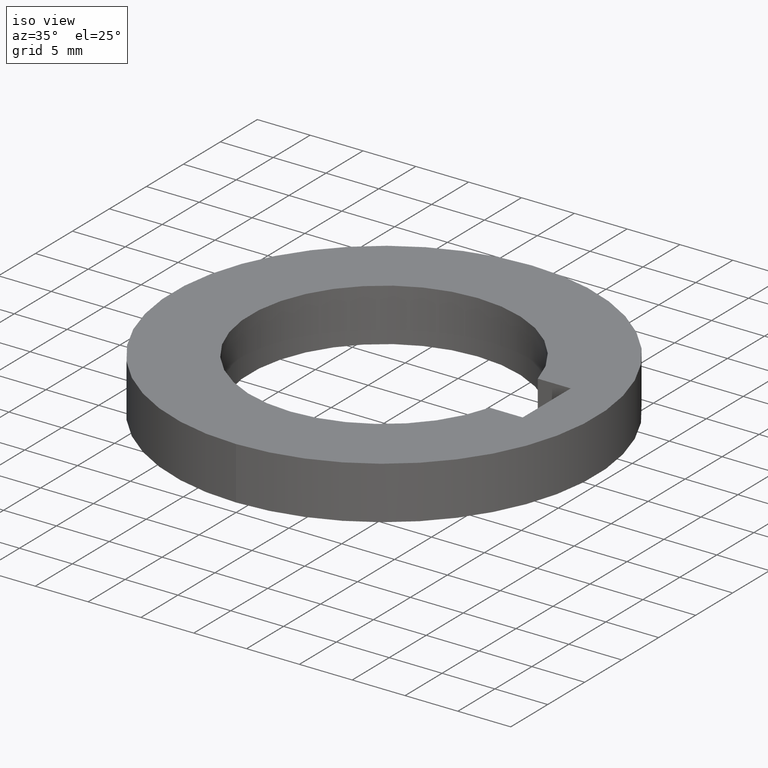
[diagram: clean part render]
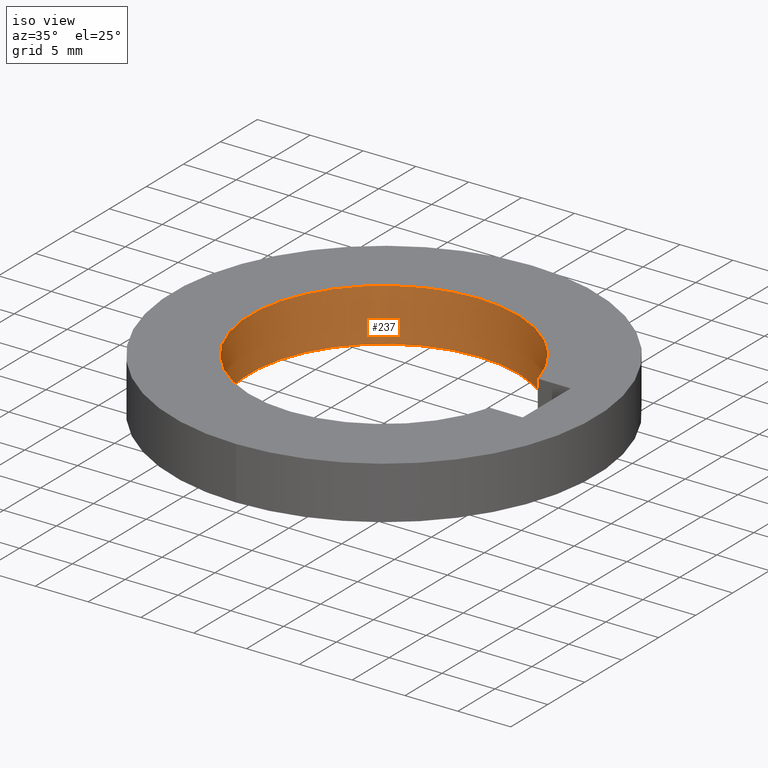
[diagram: same view with one face highlighted and labeled with its STEP entity id]
A machine part, iso view. The second image highlights one B-rep face of the part: STEP entity #237.
In plain terms, the highlighted cylindrical surface (partial cylindrical patch) has radius 12.7 mm, axis along (0, 0, -1).
Its self-contained STEP definition (entity closure, byte-faithful):
#17=DIRECTION('',(0.E0,0.E0,-1.E0));
#18=VECTOR('',#17,5.E0);
#19=CARTESIAN_POINT('',(1.227711285278E1,3.25E0,0.E0));
#20=LINE('',#19,#18);
#25=DIRECTION('',(0.E0,0.E0,1.E0));
#26=VECTOR('',#25,5.E0);
#27=CARTESIAN_POINT('',(1.227711285278E1,-3.25E0,-5.E0));
#28=LINE('',#27,#26);
#48=CARTESIAN_POINT('',(0.E0,1.227708416145E-14,0.E0));
#49=DIRECTION('',(0.E0,0.E0,1.E0));
#50=DIRECTION('',(9.667017994318E-1,2.559055118110E-1,0.E0));
#51=AXIS2_PLACEMENT_3D('',#48,#49,#50);
#56=CARTESIAN_POINT('',(0.E0,1.227708416145E-14,0.E0));
#57=DIRECTION('',(0.E0,0.E0,1.E0));
#58=DIRECTION('',(0.E0,1.E0,0.E0));
#59=AXIS2_PLACEMENT_3D('',#56,#57,#58);
#64=CARTESIAN_POINT('',(0.E0,1.227708416145E-14,0.E0));
#65=DIRECTION('',(0.E0,0.E0,1.E0));
#66=DIRECTION('',(0.E0,-1.E0,0.E0));
#67=AXIS2_PLACEMENT_3D('',#64,#65,#66);
#109=CARTESIAN_POINT('',(0.E0,1.227708416145E-14,-5.E0));
#110=DIRECTION('',(0.E0,0.E0,-1.E0));
#111=DIRECTION('',(9.667017994318E-1,-2.559055118110E-1,0.E0));
#112=AXIS2_PLACEMENT_3D('',#109,#110,#111);
#117=CARTESIAN_POINT('',(0.E0,1.227708416145E-14,-5.E0));
#118=DIRECTION('',(0.E0,0.E0,-1.E0));
#119=DIRECTION('',(0.E0,-1.E0,0.E0));
#120=AXIS2_PLACEMENT_3D('',#117,#118,#119);
#125=CARTESIAN_POINT('',(0.E0,1.227708416145E-14,-5.E0));
#126=DIRECTION('',(0.E0,0.E0,-1.E0));
#127=DIRECTION('',(0.E0,1.E0,0.E0));
#128=AXIS2_PLACEMENT_3D('',#125,#126,#127);
#182=CARTESIAN_POINT('',(0.E0,-1.27E1,0.E0));
#183=CARTESIAN_POINT('',(1.227711285278E1,-3.25E0,0.E0));
#184=VERTEX_POINT('',#182);
#185=VERTEX_POINT('',#183);
#186=CARTESIAN_POINT('',(0.E0,1.27E1,0.E0));
#187=VERTEX_POINT('',#186);
#188=CARTESIAN_POINT('',(1.227711285278E1,3.25E0,0.E0));
#189=VERTEX_POINT('',#188);
#190=CARTESIAN_POINT('',(1.227711285278E1,3.25E0,-5.E0));
#191=VERTEX_POINT('',#190);
#192=CARTESIAN_POINT('',(0.E0,1.27E1,-5.E0));
#193=VERTEX_POINT('',#192);
#194=CARTESIAN_POINT('',(0.E0,-1.27E1,-5.E0));
#195=VERTEX_POINT('',#194);
#196=CARTESIAN_POINT('',(1.227711285278E1,-3.25E0,-5.E0));
#197=VERTEX_POINT('',#196);
#214=CARTESIAN_POINT('',(0.E0,1.227708416145E-14,2.5E-1));
#215=DIRECTION('',(0.E0,0.E0,-1.E0));
#216=DIRECTION('',(0.E0,-1.E0,0.E0));
#217=AXIS2_PLACEMENT_3D('',#214,#215,#216);
#218=CYLINDRICAL_SURFACE('',#217,1.27E1);
#220=ORIENTED_EDGE('',*,*,#219,.F.);
#222=ORIENTED_EDGE('',*,*,#221,.F.);
#224=ORIENTED_EDGE('',*,*,#223,.F.);
#226=ORIENTED_EDGE('',*,*,#225,.T.);
#228=ORIENTED_EDGE('',*,*,#227,.F.);
#230=ORIENTED_EDGE('',*,*,#229,.F.);
#232=ORIENTED_EDGE('',*,*,#231,.F.);
#234=ORIENTED_EDGE('',*,*,#233,.T.);
#235=EDGE_LOOP('',(#220,#222,#224,#226,#228,#230,#232,#234));
#236=FACE_OUTER_BOUND('',#235,.F.);
#52=CIRCLE('',#51,1.27E1);
#60=CIRCLE('',#59,1.27E1);
#68=CIRCLE('',#67,1.27E1);
#113=CIRCLE('',#112,1.27E1);
#121=CIRCLE('',#120,1.27E1);
#129=CIRCLE('',#128,1.27E1);
#219=EDGE_CURVE('',#184,#185,#68,.T.);
#221=EDGE_CURVE('',#187,#184,#60,.T.);
#223=EDGE_CURVE('',#189,#187,#52,.T.);
#225=EDGE_CURVE('',#189,#191,#20,.T.);
#227=EDGE_CURVE('',#193,#191,#129,.T.);
#229=EDGE_CURVE('',#195,#193,#121,.T.);
#231=EDGE_CURVE('',#197,#195,#113,.T.);
#233=EDGE_CURVE('',#197,#185,#28,.T.);
#237=ADVANCED_FACE('',(#236),#218,.F.);